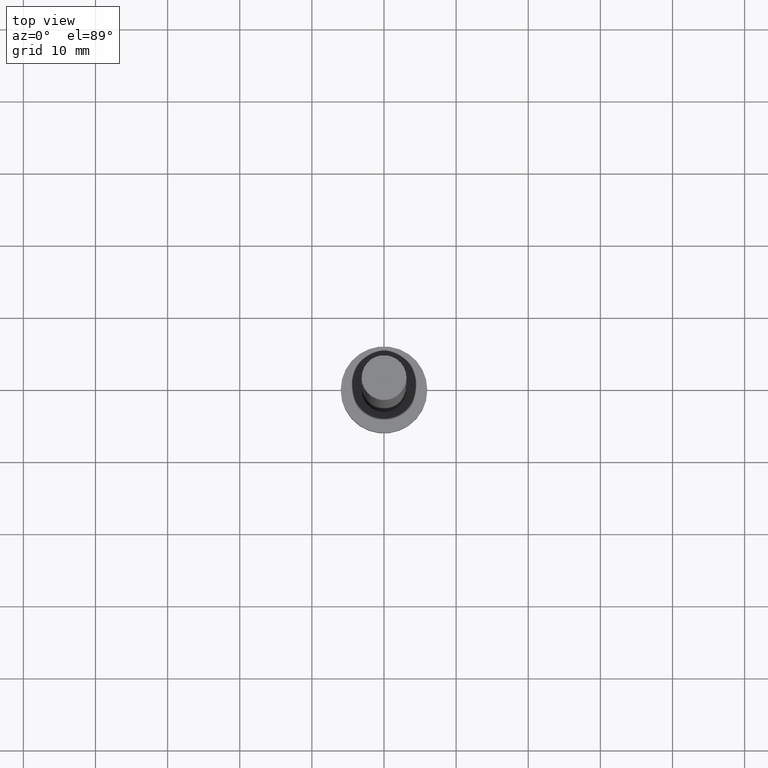
[diagram: clean part render]
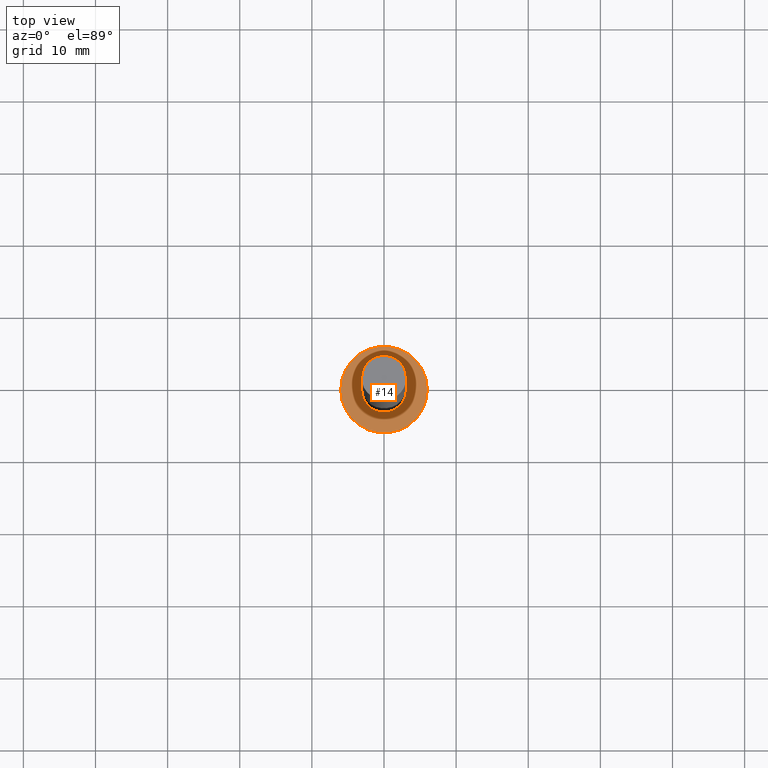
[diagram: same view with one face highlighted and labeled with its STEP entity id]
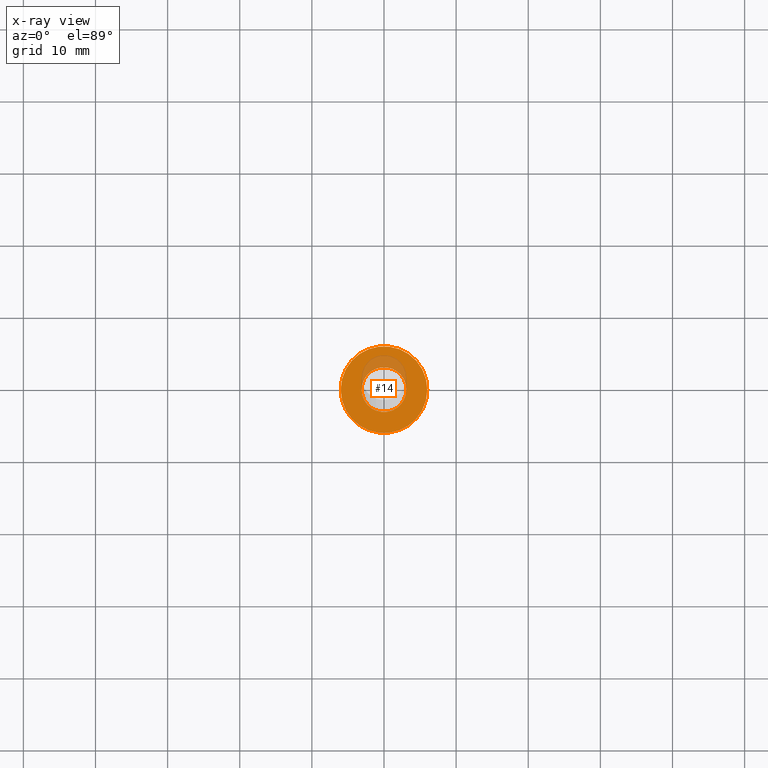
[diagram: x-ray of the same camera — body ghosted, the highlighted face saturated]
A machine part, top view. The second image highlights one B-rep face of the part: STEP entity #14.
The next image is the same camera in x-ray: the body ghosted, the highlighted face saturated — about 13% of this face is hidden behind the body in this view.
In plain terms, the highlighted planar face has unit normal (0, 0, 1).
Its self-contained STEP definition (entity closure, byte-faithful):
#2 = VERTEX_POINT ( 'NONE', #91 ) ;
#14 = ADVANCED_FACE ( 'NONE', ( #188, #126 ), #249, .T. ) ;
#16 = CIRCLE ( 'NONE', #113, 6.000000000000000888 ) ;
#17 = DIRECTION ( 'NONE',  ( 0.000000000000000000, 0.000000000000000000, 1.000000000000000000 ) ) ;
#21 = CARTESIAN_POINT ( 'NONE',  ( 0.000000000000000000, 0.000000000000000000, 5.000000000000000000 ) ) ;
#22 = EDGE_LOOP ( 'NONE', ( #144, #216 ) ) ;
#27 = CARTESIAN_POINT ( 'NONE',  ( -6.000000000000000888, 0.000000000000000000, 5.000000000000000000 ) ) ;
#35 = ORIENTED_EDGE ( 'NONE', *, *, #38, .F. ) ;
#38 = EDGE_CURVE ( 'NONE', #2, #80, #48, .T. ) ;
#39 = VERTEX_POINT ( 'NONE', #154 ) ;
#42 = AXIS2_PLACEMENT_3D ( 'NONE', #228, #146, #55 ) ;
#48 = CIRCLE ( 'NONE', #42, 3.100000000000000089 ) ;
#49 = DIRECTION ( 'NONE',  ( 0.000000000000000000, 0.000000000000000000, 1.000000000000000000 ) ) ;
#55 = DIRECTION ( 'NONE',  ( 1.000000000000000000, 0.000000000000000000, 0.000000000000000000 ) ) ;
#56 = DIRECTION ( 'NONE',  ( 1.000000000000000000, 0.000000000000000000, 0.000000000000000000 ) ) ;
#67 = DIRECTION ( 'NONE',  ( 0.000000000000000000, 0.000000000000000000, 1.000000000000000000 ) ) ;
#72 = CIRCLE ( 'NONE', #248, 6.000000000000000888 ) ;
#78 = CARTESIAN_POINT ( 'NONE',  ( 0.000000000000000000, 0.000000000000000000, 5.000000000000000000 ) ) ;
#80 = VERTEX_POINT ( 'NONE', #254 ) ;
#81 = EDGE_CURVE ( 'NONE', #80, #2, #90, .T. ) ;
#89 = AXIS2_PLACEMENT_3D ( 'NONE', #21, #17, #186 ) ;
#90 = CIRCLE ( 'NONE', #156, 3.100000000000000089 ) ;
#91 = CARTESIAN_POINT ( 'NONE',  ( 3.100000000000000089, 3.796405077356794918E-16, 5.000000000000000000 ) ) ;
#113 = AXIS2_PLACEMENT_3D ( 'NONE', #159, #67, #56 ) ;
#122 = DIRECTION ( 'NONE',  ( 1.000000000000000000, 0.000000000000000000, 0.000000000000000000 ) ) ;
#126 = FACE_OUTER_BOUND ( 'NONE', #22, .T. ) ;
#142 = EDGE_CURVE ( 'NONE', #150, #39, #72, .T. ) ;
#144 = ORIENTED_EDGE ( 'NONE', *, *, #142, .T. ) ;
#146 = DIRECTION ( 'NONE',  ( 0.000000000000000000, 0.000000000000000000, 1.000000000000000000 ) ) ;
#150 = VERTEX_POINT ( 'NONE', #27 ) ;
#152 = DIRECTION ( 'NONE',  ( 0.000000000000000000, 0.000000000000000000, 1.000000000000000000 ) ) ;
#153 = ORIENTED_EDGE ( 'NONE', *, *, #81, .F. ) ;
#154 = CARTESIAN_POINT ( 'NONE',  ( 6.000000000000000888, 7.347880794884120722E-16, 5.000000000000000000 ) ) ;
#156 = AXIS2_PLACEMENT_3D ( 'NONE', #78, #152, #235 ) ;
#159 = CARTESIAN_POINT ( 'NONE',  ( 0.000000000000000000, 0.000000000000000000, 5.000000000000000000 ) ) ;
#185 = CARTESIAN_POINT ( 'NONE',  ( 0.000000000000000000, 0.000000000000000000, 5.000000000000000000 ) ) ;
#186 = DIRECTION ( 'NONE',  ( 1.000000000000000000, 0.000000000000000000, -0.000000000000000000 ) ) ;
#188 = FACE_BOUND ( 'NONE', #234, .T. ) ;
#204 = EDGE_CURVE ( 'NONE', #39, #150, #16, .T. ) ;
#216 = ORIENTED_EDGE ( 'NONE', *, *, #204, .T. ) ;
#228 = CARTESIAN_POINT ( 'NONE',  ( 0.000000000000000000, 0.000000000000000000, 5.000000000000000000 ) ) ;
#234 = EDGE_LOOP ( 'NONE', ( #153, #35 ) ) ;
#235 = DIRECTION ( 'NONE',  ( 1.000000000000000000, 0.000000000000000000, 0.000000000000000000 ) ) ;
#248 = AXIS2_PLACEMENT_3D ( 'NONE', #185, #49, #122 ) ;
#249 = PLANE ( 'NONE',  #89 ) ;
#254 = CARTESIAN_POINT ( 'NONE',  ( -3.100000000000000089, 0.000000000000000000, 5.000000000000000000 ) ) ;